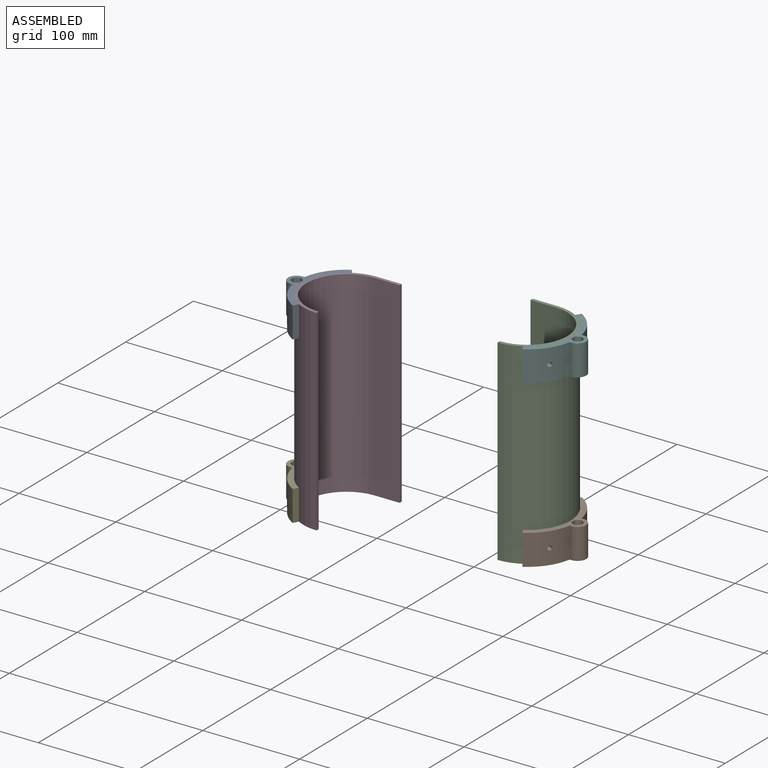
[diagram: assembled view]
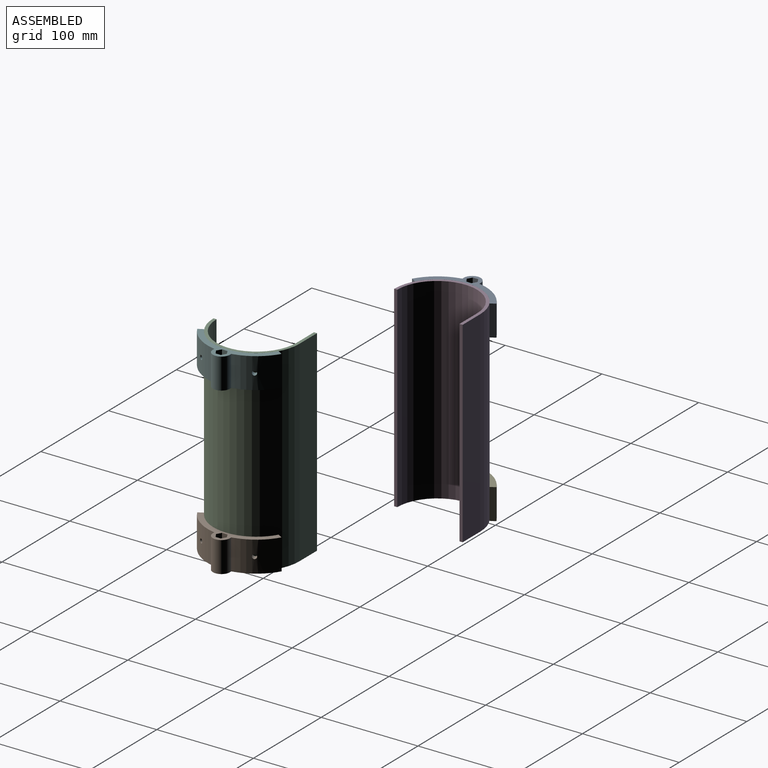
[diagram: assembled view, second angle]
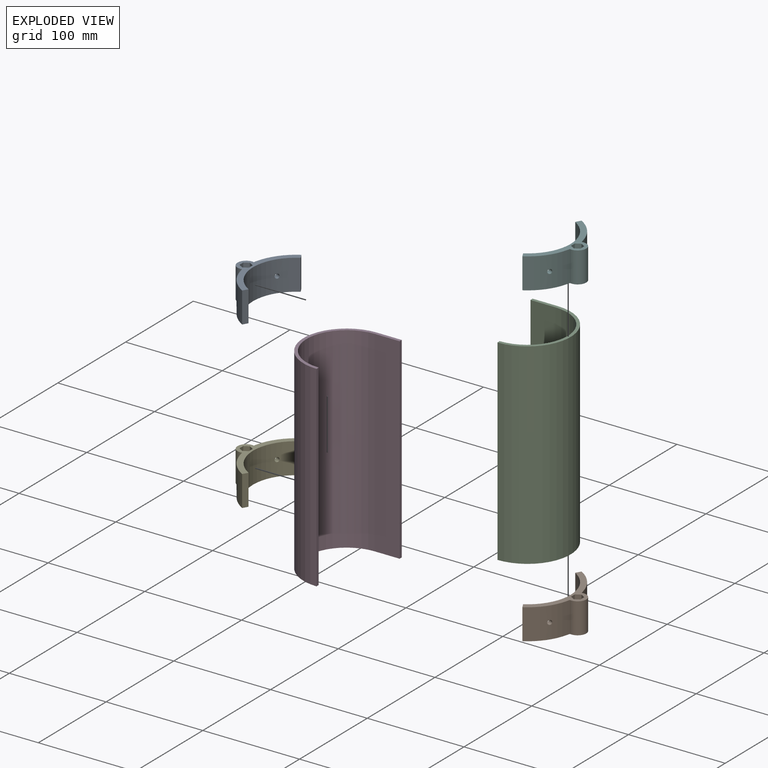
[diagram: exploded view]
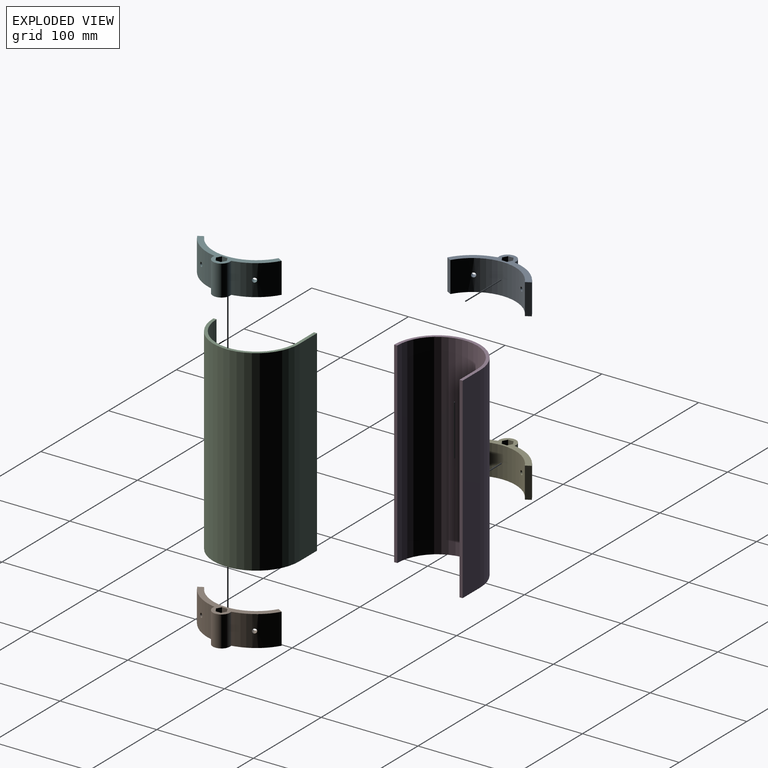
[diagram: exploded view, second angle]
ASSEMBLY  parts=6 mates=4
PART A: 18 faces, bbox 38.4x87.3x31.8 mm
  f0: cylinder r=44.45mm len=76.99mm, axis (0,0,-1), area 2923.8mm2, adj f11,f12,f14,f15,f16,f17
  f1: cylinder r=50.42mm len=31.91mm, axis (0,0,-1), area 1283.7mm2, adj f10,f11,f14,f15,f17
  f2: cylinder r=50.42mm len=31.91mm, axis (0,0,-1), area 1283.7mm2, adj f8,f12,f14,f15,f16
  f3: plane 31.75x4.89mm, normal (0.5,-0.87,0), area 179.3mm2, adj f4,f13,f14,f15
  f4: plane 31.75x4.89mm, normal (-0.5,-0.87,0), area 179.3mm2, adj f3,f5,f14,f15
  f5: plane 31.75x5.65mm, normal (-1,0,0), area 179.3mm2, adj f4,f6,f14,f15
  f6: plane 31.75x4.89mm, normal (-0.5,0.87,0), area 179.3mm2, adj f5,f7,f14,f15
  f7: plane 31.75x4.89mm, normal (0.5,0.87,0), area 179.3mm2, adj f6,f13,f14,f15
  f8: plane 31.75x3.07mm, normal (-0.97,0.25,0), area 100.4mm2, adj f2,f9,f14,f15
  f9: cylinder r=8.89mm len=31.75mm, axis (0,0,-1), area 1007.1mm2, adj f8,f10,f14,f15
  f10: plane 31.75x3.07mm, normal (-0.97,-0.25,0), area 100.4mm2, adj f1,f9,f14,f15
  f11: plane 31.75x5.17mm, normal (0.87,-0.5,0), area 189.5mm2, adj f0,f1,f14,f15
  f12: plane 31.75x5.17mm, normal (0.87,0.5,0), area 189.5mm2, adj f0,f2,f14,f15
  f13: plane 31.75x5.65mm, normal (1,0,0), area 179.3mm2, adj f3,f7,f14,f15
  f14: plane 87.33x38.35mm, normal (0,0,1), area 661.6mm2, adj f0,f1,f2,f3,f4,f5,f6,f7
  f15: plane 87.33x38.35mm, normal (0,0,-1), area 661.6mm2, adj f0,f1,f2,f3,f4,f5,f6,f7
  f16: cylinder r=2.25mm len=7.79mm, axis (0.88,-0.47,0), area 84.7mm2, adj f0,f2
  f17: cylinder r=2.25mm len=7.79mm, axis (0.88,0.47,0), area 84.7mm2, adj f0,f1
PART B: same geometry as A
PART C: 8 faces, bbox 70.4x88.9x203.2 mm
  f0: cylinder r=41.27mm len=203.2mm, axis (0,0,-1), area 26348.8mm2, adj f1,f5,f6,f7
  f1: plane 203.2x3.18mm, normal (-1,0,0), area 645.2mm2, adj f0,f2,f6,f7
  f2: cylinder r=44.45mm len=203.2mm, axis (0,0,-1), area 28375.6mm2, adj f1,f3,f6,f7
  f3: plane 203.2x25.93mm, normal (0,1,0), area 5268.3mm2, adj f2,f4,f6,f7
  f4: plane 203.2x3.18mm, normal (-1,0,0), area 645.2mm2, adj f3,f5,f6,f7
  f5: plane 203.2x25.93mm, normal (0,-1,0), area 5268.3mm2, adj f0,f4,f6,f7
  f6: plane 88.9x70.38mm, normal (0,0,1), area 509.9mm2, adj f0,f1,f2,f3,f4,f5
  f7: plane 88.9x70.38mm, normal (0,0,-1), area 509.9mm2, adj f0,f1,f2,f3,f4,f5
PART D: 8 faces, bbox 70.4x88.9x203.2 mm
  f0: plane 203.2x3.18mm, normal (1,0,0), area 645.2mm2, adj f1,f5,f6,f7
  f1: plane 203.2x25.93mm, normal (0,1,0), area 5268.3mm2, adj f0,f2,f6,f7
  f2: cylinder r=44.45mm len=203.2mm, axis (0,0,-1), area 28375.6mm2, adj f1,f3,f6,f7
  f3: plane 203.2x3.18mm, normal (1,0,0), area 645.2mm2, adj f2,f4,f6,f7
  f4: cylinder r=41.27mm len=203.2mm, axis (0,0,-1), area 26348.8mm2, adj f3,f5,f6,f7
  f5: plane 203.2x25.93mm, normal (0,-1,0), area 5268.3mm2, adj f0,f4,f6,f7
  f6: plane 88.9x70.38mm, normal (0,0,1), area 509.9mm2, adj f0,f1,f2,f3,f4,f5
  f7: plane 88.9x70.38mm, normal (0,0,-1), area 509.9mm2, adj f0,f1,f2,f3,f4,f5
PART E: same geometry as A
PART F: same geometry as A
PLACE A rot(axis=(1,0,0),180deg) t=(-78.74,24.75,107.06)mm
PLACE B rot(axis=(0,0,-1),180deg) t=(134.61,-12.68,-20.51)mm
PLACE C t=(134.61,-12.68,65.21)mm
PLACE D t=(-78.74,24.75,21.34)mm fixed
PLACE E t=(-78.74,24.75,-64.39)mm
PLACE F rot(axis=(0,0,-1),180deg) t=(134.61,-12.68,150.94)mm
MATE fastened C.f0 <-> F.f0  axis (0,0,1) through (134.61,-12.68,166.81)mm
MATE fastened D.f2 <-> E.f0  axis (0,0,-1) through (-78.74,24.75,-80.26)mm
MATE fastened D.f2 <-> A.f0  axis (0,0,1) through (-78.74,24.75,122.94)mm
MATE fastened C.f0 <-> B.f0  axis (0,0,-1) through (134.61,-12.68,-36.39)mm
